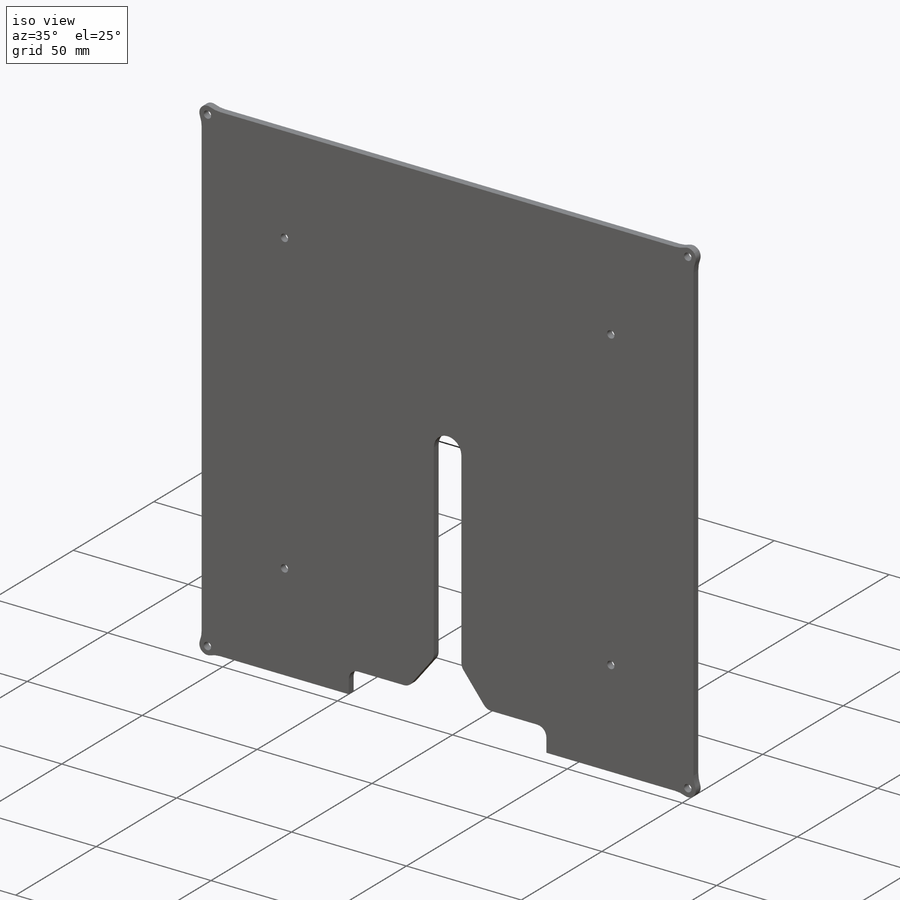
[diagram: iso view]
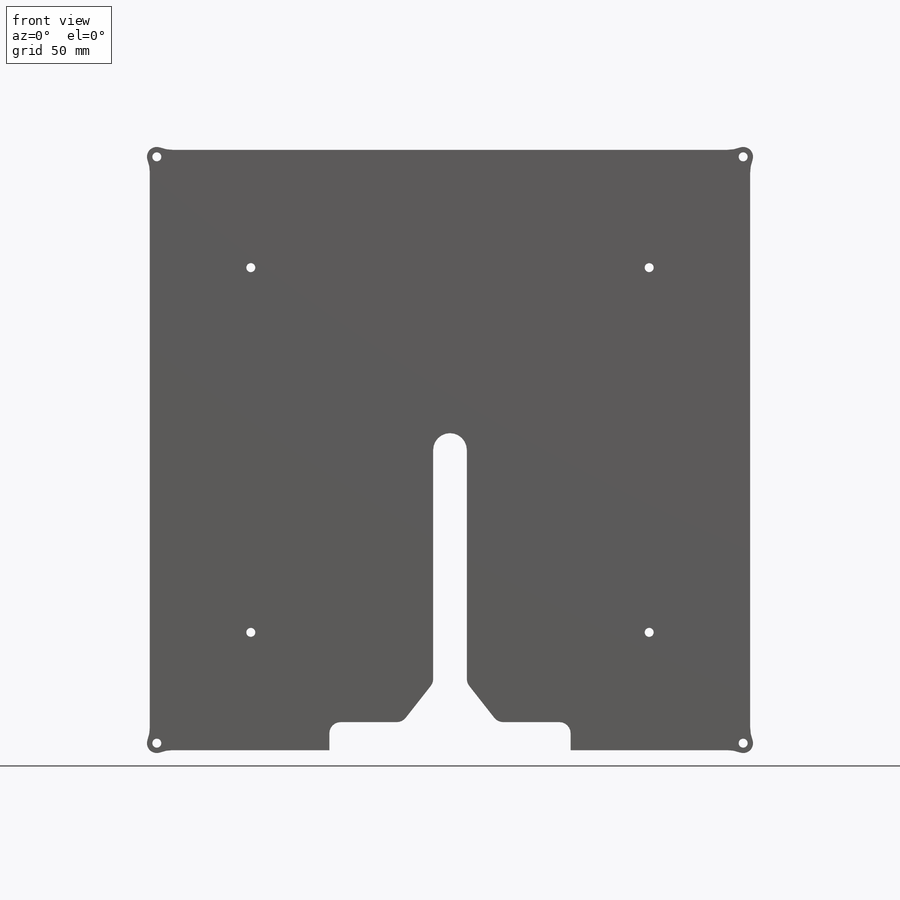
[diagram: front view]
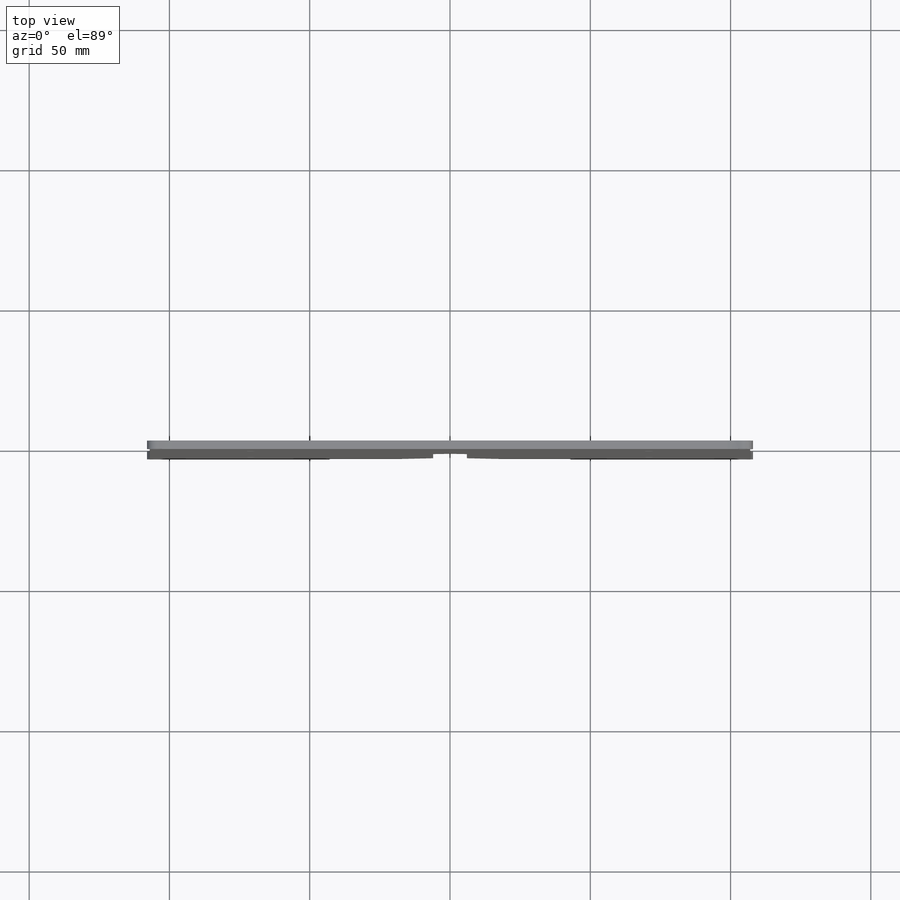
[diagram: top view]
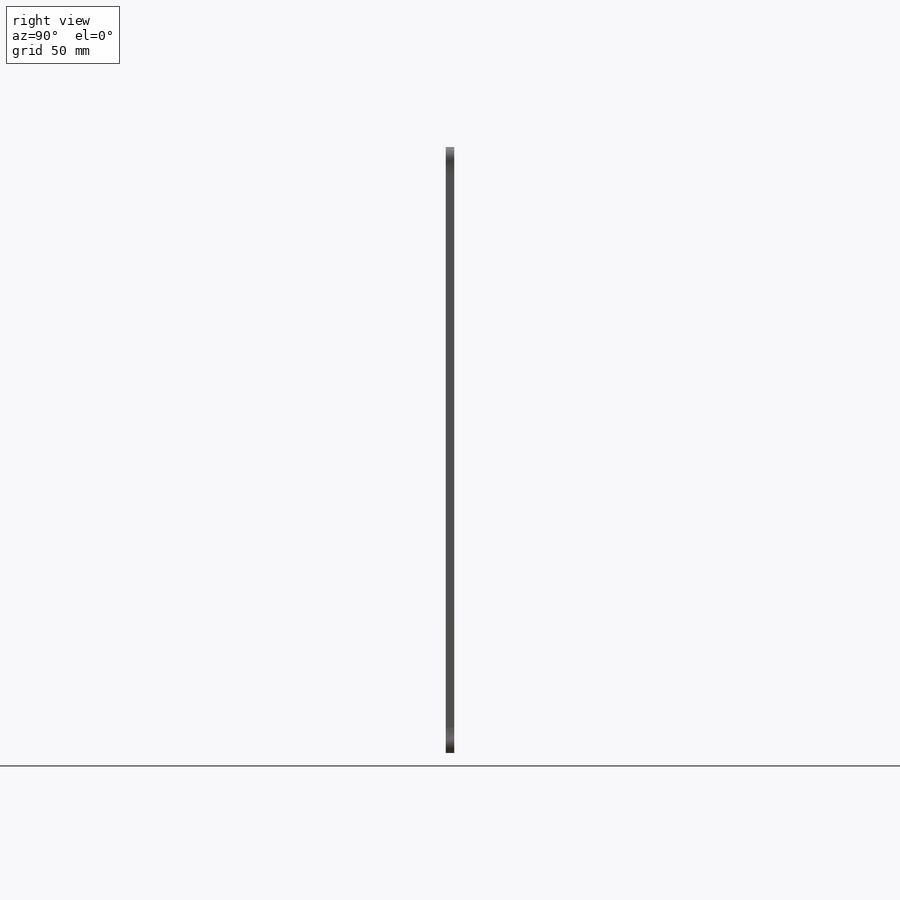
[diagram: right view]
SOLIDWORKS PART (.sldprt)
format: sldprt  version: not decoded by parser v0  size: 378,880 bytes
history: native  units: mm
features: sketch x4, cut_extrude x3, material x1, extrude x1, fillet x1 (+13 scaffold rows collapsed)
feature tree (23):
  scaffold x13  (default folders/planes/origin — collapsed)
  material  "Balsa"
  sketch  "Sketch1"  dims[c1.D1=12.0mm c1.D3=12.0mm c1.D4=12.0mm c1.D5=12.0mm c1.D6=12.0mm c1.D7=12.0mm c2.D1=214.0mm c2.D2=209.0mm c2.D8=214.0mm c2.D9=10.0mm]
  extrude  "Boss-Extrude1"  Depth=3mm
  sketch  "Sketch2"  dims[D1=6.0mm]
  cut_extrude  "Cut-Extrude1"  [1 undecoded]
  sketch  "Sketch4"  dims[D1=26.0mm D2=14.0mm]
  cut_extrude  "Cut-Extrude3"  [1 undecoded]
  fillet  "Fillet1"  Radius=4mm
  sketch  "Sketch3"  dims[D3=3.2mm D1=36.0mm D2=130.0mm]
  cut_extrude  "Cut-Extrude2"  [1 undecoded]
decode coverage: 6 of 9 modeling features carry decoded parameters
note: 3 parameter values undecoded
summary: no parameter record found for 3 features
note: suppression state not decoded; provenance and decode notes live in map.json
